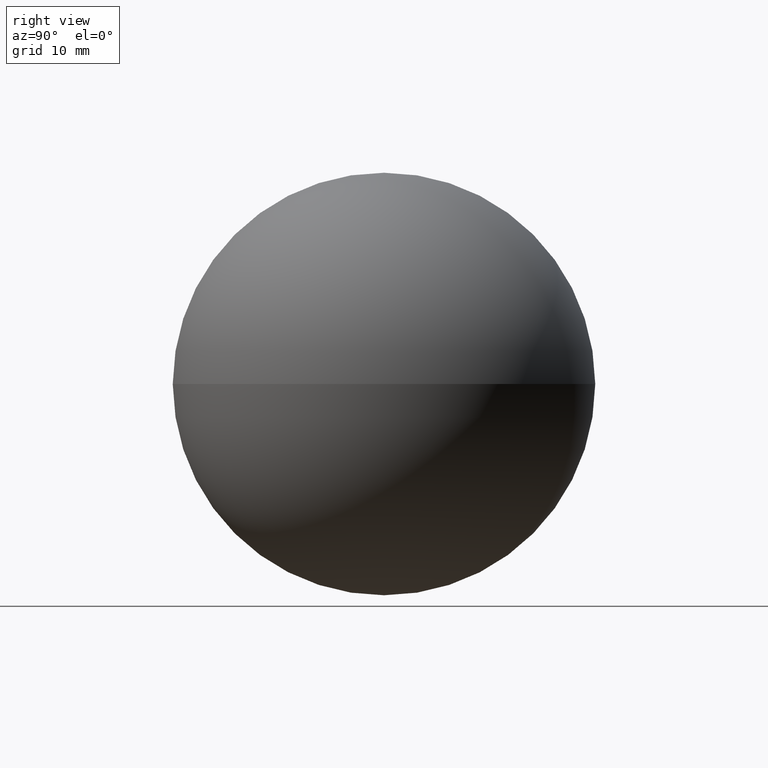
[diagram: clean part render]
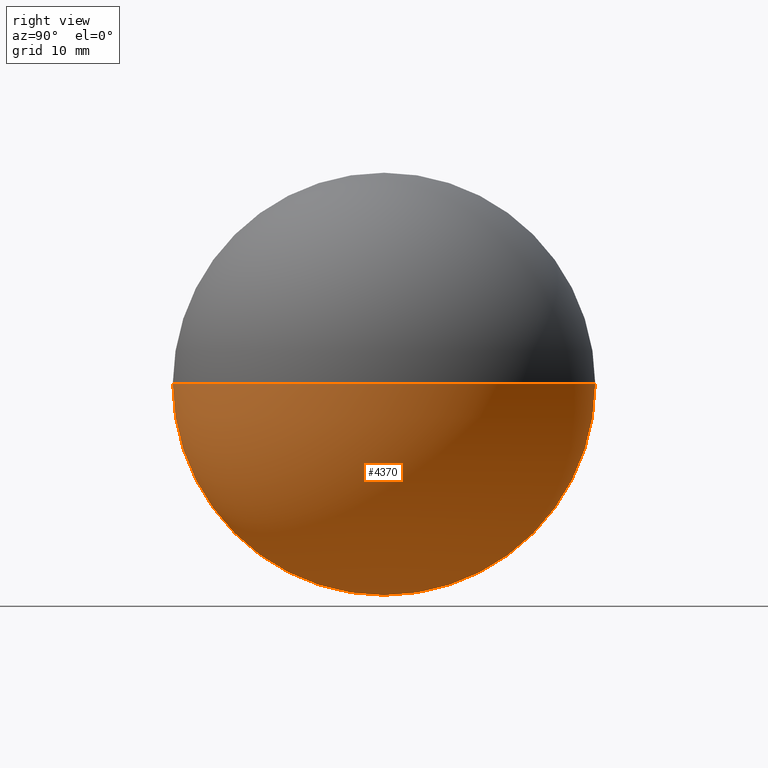
[diagram: same view with one face highlighted and labeled with its STEP entity id]
A machine part, right view. The second image highlights one B-rep face of the part: STEP entity #4370.
In plain terms, the highlighted spherical surface has radius 20 mm.
Its self-contained STEP definition (entity closure, byte-faithful):
#19 = DIRECTION ( 'NONE',  ( -1.224646799147353200E-016, 1.499759782661855400E-032, 1.000000000000000000 ) ) ;
#626 = CIRCLE ( 'NONE', #6594, 20.00000000000000000 ) ;
#673 = DIRECTION ( 'NONE',  ( -1.000000000000000000, 0.0000000000000000000, 0.0000000000000000000 ) ) ;
#1098 = AXIS2_PLACEMENT_3D ( 'NONE', #5415, #4646, #6175 ) ;
#1337 = CARTESIAN_POINT ( 'NONE',  ( 0.0000000000000000000, 0.0000000000000000000, 0.0000000000000000000 ) ) ;
#1480 = ORIENTED_EDGE ( 'NONE', *, *, #8184, .T. ) ;
#1668 = VERTEX_POINT ( 'NONE', #6246 ) ;
#2389 = ORIENTED_EDGE ( 'NONE', *, *, #8135, .F. ) ;
#2968 = FACE_OUTER_BOUND ( 'NONE', #6497, .T. ) ;
#3599 = CARTESIAN_POINT ( 'NONE',  ( 0.0000000000000000000, 0.0000000000000000000, 0.0000000000000000000 ) ) ;
#4037 = AXIS2_PLACEMENT_3D ( 'NONE', #3599, #19, #8551 ) ;
#4370 = ADVANCED_FACE ( 'NONE', ( #2968 ), #4743, .T. ) ;
#4646 = DIRECTION ( 'NONE',  ( 0.0000000000000000000, 0.0000000000000000000, 1.000000000000000000 ) ) ;
#4743 = SPHERICAL_SURFACE ( 'NONE', #1098, 20.00000000000000000 ) ;
#4914 = DIRECTION ( 'NONE',  ( -0.0000000000000000000, 0.0000000000000000000, -1.000000000000000000 ) ) ;
#5187 = CIRCLE ( 'NONE', #4037, 20.00000000000000000 ) ;
#5415 = CARTESIAN_POINT ( 'NONE',  ( 0.0000000000000000000, 0.0000000000000000000, 0.0000000000000000000 ) ) ;
#6175 = DIRECTION ( 'NONE',  ( -1.000000000000000000, 1.224646799147351500E-016, 0.0000000000000000000 ) ) ;
#6246 = CARTESIAN_POINT ( 'NONE',  ( 1.224646799147349700E-015, 20.00000000000000000, 0.0000000000000000000 ) ) ;
#6497 = EDGE_LOOP ( 'NONE', ( #2389, #1480 ) ) ;
#6594 = AXIS2_PLACEMENT_3D ( 'NONE', #1337, #4914, #673 ) ;
#7267 = CARTESIAN_POINT ( 'NONE',  ( -3.673940397442056000E-015, -20.00000000000000000, 0.0000000000000000000 ) ) ;
#8135 = EDGE_CURVE ( 'NONE', #8211, #1668, #5187, .T. ) ;
#8184 = EDGE_CURVE ( 'NONE', #8211, #1668, #626, .T. ) ;
#8211 = VERTEX_POINT ( 'NONE', #7267 ) ;
#8551 = DIRECTION ( 'NONE',  ( 1.000000000000000000, 0.0000000000000000000, 1.224646799147353200E-016 ) ) ;